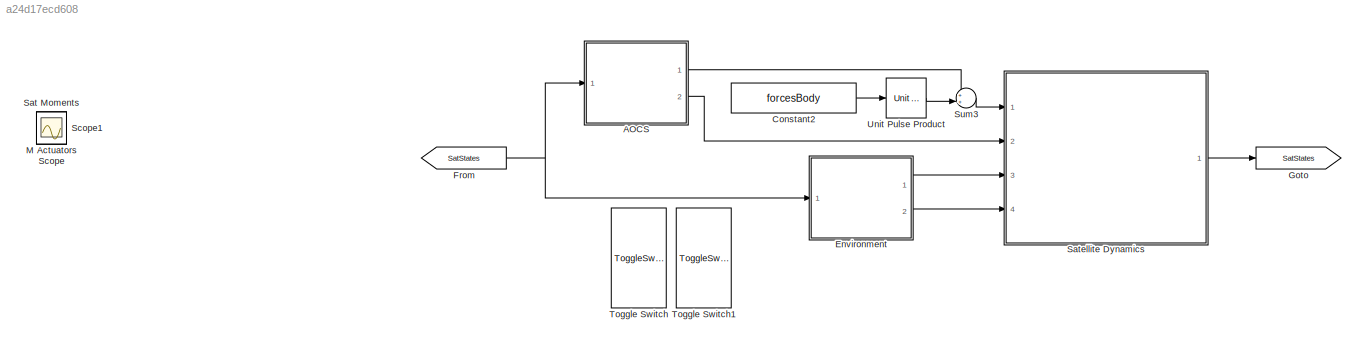
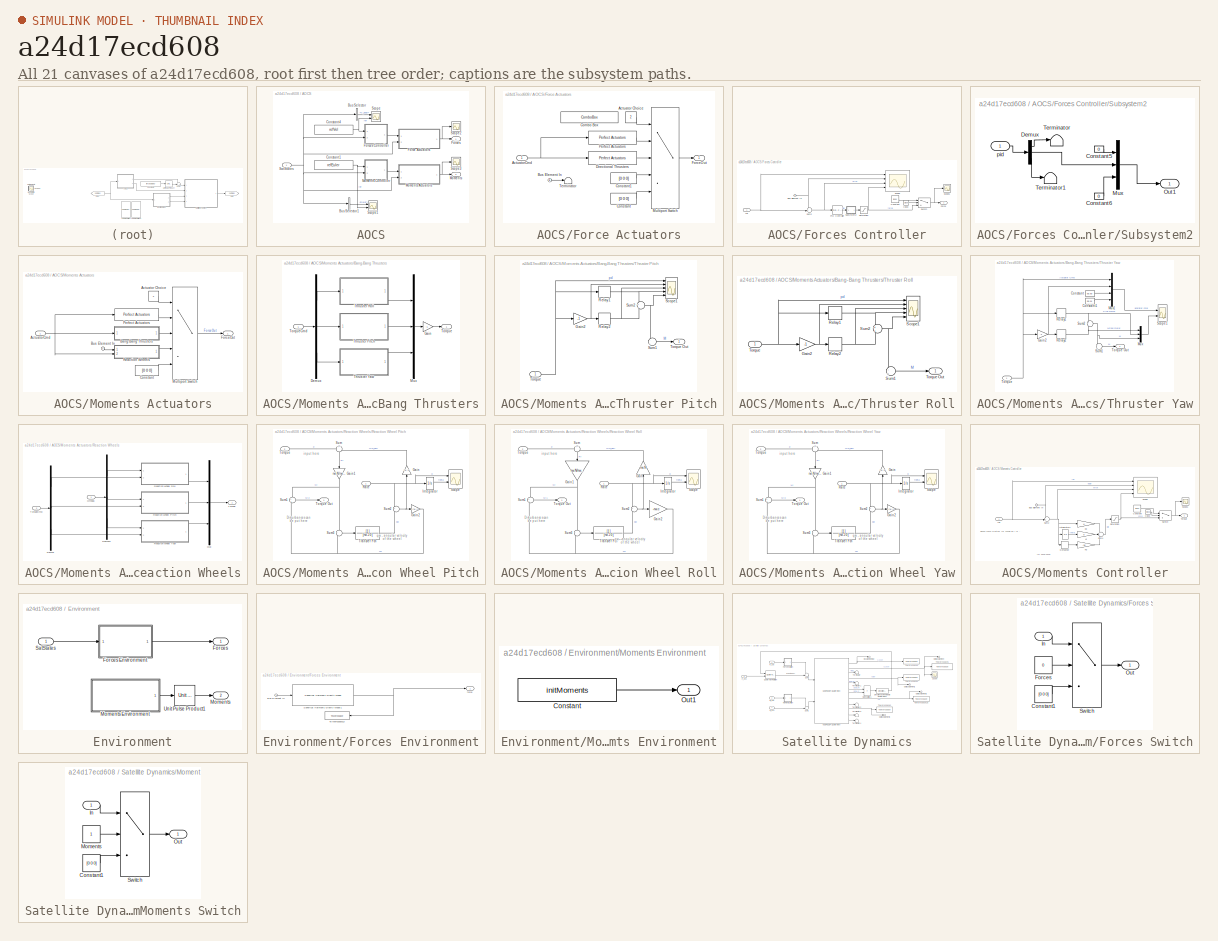
[diagram: thumbnail index - all 21 canvases of the model, root first then tree order]
MODEL slx_a24d17ecd608
KIND model
CONFIG AbsTol = auto
CONFIG EnableMultiTasking = off
CONFIG FixedStep = 0.01
CONFIG MaxStep = 1
CONFIG MinStep = dT
CONFIG RelTol = 1e-3
CONFIG SampleTimeConstraint = Unconstrained
CONFIG Solver = FixedStepAuto
CONFIG SolverName = FixedStepAuto
CONFIG StartTime = 0.0
CONFIG StopTime = 1000
WORKSPACE source: mxarray member
WORKSPACE actuators = 0
BLOCK [SubSystem] AOCS
  Ports = [1, 2]
  RequestExecContextInheritance = off
BLOCK [BusSelector] AOCS/Bus Selector
  OutputAsBus = off
  OutputSignals = V_body
  Ports = [1, 1]
BLOCK [BusSelector] AOCS/Bus Selector1
  OutputAsBus = off
  OutputSignals = Euler
  Ports = [1, 1]
BLOCK [Constant] AOCS/Constant1
  Value = refEuler
BLOCK [Constant] AOCS/Constant4
  Value = refVel
BLOCK [SubSystem] AOCS/Force Actuators
  Ports = [2, 1]
  RequestExecContextInheritance = off
BLOCK [Constant] AOCS/Force Actuators/Actuator Choice
  Value = 2
BLOCK [Inport] AOCS/Force Actuators/ActuatorCmd
  IconDisplay = Port number
BLOCK [Inport] AOCS/Force Actuators/Bus Element In
  IconDisplay = Port number
  Port = 2
BLOCK [ComboBox] AOCS/Force Actuators/Combo Box
  LabelPosition = Hide
  SelectedLabel = Thrusters
BLOCK [Constant] AOCS/Force Actuators/Constant
  Value = [0 0 0]
BLOCK [Constant] AOCS/Force Actuators/Constant1
  Value = [0 0 0]
BLOCK [Reference] AOCS/Force Actuators/Directional Thrusters  REF=scars_library/Perfect Actuators  (lib defined in slx_0992aaab4a30)
  Ports = [1, 1]
  SourceBlock = scars_library/Perfect Actuators
BLOCK [Outport] AOCS/Force Actuators/ForceOut
  IconDisplay = Port number
BLOCK [MultiPortSwitch] AOCS/Force Actuators/Multiport Switch
  DiagnosticForDefault = Warning
  InputSameDT = off
  Inputs = 4
  Ports = [5, 1]
  SaturateOnIntegerOverflow = off
BLOCK [Reference] AOCS/Force Actuators/Perfect Actuators  REF=scars_library/Perfect Actuators  (lib defined in slx_0992aaab4a30)
  Ports = [1, 1]
  SourceBlock = scars_library/Perfect Actuators
BLOCK [Terminator] AOCS/Force Actuators/Terminator
BLOCK [Outport] AOCS/Forces
  IconDisplay = Port number
BLOCK [SubSystem] AOCS/Forces Controller
  Ports = [2, 1]
  RequestExecContextInheritance = off
BLOCK [Inport] AOCS/Forces Controller/Bus Element In
  IconDisplay = Port number
  Port = 2
BLOCK [Clock] AOCS/Forces Controller/Clock
BLOCK [Constant] AOCS/Forces Controller/Constant
  Value = [0 0 0]
BLOCK [Outport] AOCS/Forces Controller/Force
  IconDisplay = Port number
BLOCK [Reference] AOCS/Forces Controller/PID Controller  REF=simulink/Continuous/PID Controller
  Ports = [1, 1]
  SourceBlock = simulink/Continuous/PID Controller
  SourceProductBaseCode = SL
  SourceProductName = Simulink
  SourceType = PID 1dof
BLOCK [Saturate] AOCS/Forces Controller/Saturation
  InputPortMap = u0
  LowerLimit = -3
  Ports = [1, 1]
  UpperLimit = 3
BLOCK [Scope] AOCS/Forces Controller/Scope
  Floating = off
  NumInputPorts = 4
  Ports = [4]
  ScopeSpecificationString = Simulink.scopes.TimeScopeBlockCfg('CurrentConfiguration', extmgr.ConfigurationSet(extmgr.Configuration('Core','General UI',true),extmgr.Configuration('Core','Source UI',true),extmgr.Configuration('Sources','WiredSimulink',true,'DataLoggingVariableName','ScopeData1'),extmgr.Configuration('Visuals','Time Domain',true,'SerializedDisplays',{struct('MinYLimReal','-872.23437','MaxYLimReal','7847.26756',...<+4383ch>
BLOCK [Scope] AOCS/Forces Controller/Scope1
  Floating = off
  NumInputPorts = 1
  Ports = [1]
  ScopeSpecificationString = Simulink.scopes.TimeScopeBlockCfg('CurrentConfiguration', extmgr.ConfigurationSet(extmgr.Configuration('Core','General UI',true),extmgr.Configuration('Core','Source UI',true),extmgr.Configuration('Sources','WiredSimulink',true,'DataLoggingVariableName','ScopeData1'),extmgr.Configuration('Visuals','Time Domain',true,'SerializedDisplays',{struct('MinYLimReal','-0.000024','MaxYLimReal','0.000003','YL...<+1426ch>
BLOCK [SubSystem] AOCS/Forces Controller/Subsystem2
  Commented = through
  Ports = [1, 1]
  RequestExecContextInheritance = off
BLOCK [Constant] AOCS/Forces Controller/Subsystem2/Constant5
  Value = 0
BLOCK [Constant] AOCS/Forces Controller/Subsystem2/Constant6
  Value = 0
BLOCK [Demux] AOCS/Forces Controller/Subsystem2/Demux
  DisplayOption = bar
  Outputs = 3
  Ports = [1, 3]
BLOCK [Mux] AOCS/Forces Controller/Subsystem2/Mux
  DisplayOption = bar
  Inputs = 3
  Ports = [3, 1]
BLOCK [Outport] AOCS/Forces Controller/Subsystem2/Out1
  IconDisplay = Port number
BLOCK [Terminator] AOCS/Forces Controller/Subsystem2/Terminator
BLOCK [Terminator] AOCS/Forces Controller/Subsystem2/Terminator1
BLOCK [Inport] AOCS/Forces Controller/Subsystem2/pid
  IconDisplay = Port number
BLOCK [Sum] AOCS/Forces Controller/Sum2
  IconShape = round
  InputSameDT = off
  Inputs = -+|
  OutDataTypeStr = Inherit: Inherit via internal rule
  Ports = [2, 1]
  SaturateOnIntegerOverflow = off
BLOCK [Switch] AOCS/Forces Controller/Switch
  InputSameDT = off
  SaturateOnIntegerOverflow = off
  Threshold = 5000
BLOCK [Inport] AOCS/Forces Controller/ref
  IconDisplay = Port number
BLOCK [Outport] AOCS/Moments
  IconDisplay = Port number
  Port = 2
BLOCK [SubSystem] AOCS/Moments Actuators
  Ports = [2, 1]
  RequestExecContextInheritance = off
BLOCK [Constant] AOCS/Moments Actuators/Actuator Choice
  Value = 2
BLOCK [Inport] AOCS/Moments Actuators/ActuatorCmd
  IconDisplay = Port number
BLOCK [SubSystem] AOCS/Moments Actuators/Bang-Bang Thrusters
  Ports = [1, 1]
  RequestExecContextInheritance = off
BLOCK [Demux] AOCS/Moments Actuators/Bang-Bang Thrusters/Demux
  DisplayOption = bar
  Outputs = 3
  Ports = [1, 3]
BLOCK [Gain] AOCS/Moments Actuators/Bang-Bang Thrusters/Gain
  Gain = -1
  OutDataTypeStr = Inherit: Inherit via internal rule
  ParamDataTypeStr = Inherit: Inherit via internal rule
  SaturateOnIntegerOverflow = off
BLOCK [Mux] AOCS/Moments Actuators/Bang-Bang Thrusters/Mux
  DisplayOption = bar
  Inputs = 3
  Ports = [3, 1]
BLOCK [SubSystem] AOCS/Moments Actuators/Bang-Bang Thrusters/Thruster Pitch
  Ports = [1, 1]
  RequestExecContextInheritance = off
BLOCK [Gain] AOCS/Moments Actuators/Bang-Bang Thrusters/Thruster Pitch/Gain2
  Gain = -1
  OutDataTypeStr = Inherit: Inherit via internal rule
  ParamDataTypeStr = Inherit: Inherit via internal rule
  SaturateOnIntegerOverflow = off
BLOCK [Relay] AOCS/Moments Actuators/Bang-Bang Thrusters/Thruster Pitch/Relay1
  OffSwitchValue = bb.a0
  OnOutputValue = bb.thrust
  OnSwitchValue = bb.a1
BLOCK [Relay] AOCS/Moments Actuators/Bang-Bang Thrusters/Thruster Pitch/Relay2
  OffSwitchValue = bb.a0
  OnOutputValue = -bb.thrust
  OnSwitchValue = bb.a1
BLOCK [Scope] AOCS/Moments Actuators/Bang-Bang Thrusters/Thruster Pitch/Scope1
  Floating = off
  NumInputPorts = 5
  Ports = [5]
  ScopeSpecificationString = Simulink.scopes.TimeScopeBlockCfg('CurrentConfiguration', extmgr.ConfigurationSet(extmgr.Configuration('Core','General UI',true),extmgr.Configuration('Core','Source UI',true),extmgr.Configuration('Sources','WiredSimulink',true,'DataLoggingVariableName','ScopeData2'),extmgr.Configuration('Visuals','Time Domain',true,'SerializedDisplays',{struct('MinYLimReal','-5012.5','MaxYLimReal','5012.5','YLabel...<+1494ch>
BLOCK [Sum] AOCS/Moments Actuators/Bang-Bang Thrusters/Thruster Pitch/Sum1
  IconShape = round
  InputSameDT = off
  Inputs = -|-
  OutDataTypeStr = Inherit: Inherit via internal rule
  Ports = [2, 1]
  SaturateOnIntegerOverflow = off
BLOCK [Sum] AOCS/Moments Actuators/Bang-Bang Thrusters/Thruster Pitch/Sum2
  IconShape = round
  InputSameDT = off
  Inputs = +|+
  OutDataTypeStr = Inherit: Inherit via internal rule
  Ports = [2, 1]
  SaturateOnIntegerOverflow = off
BLOCK [Inport] AOCS/Moments Actuators/Bang-Bang Thrusters/Thruster Pitch/Torque
  IconDisplay = Port number
BLOCK [Outport] AOCS/Moments Actuators/Bang-Bang Thrusters/Thruster Pitch/Torque Out
  IconDisplay = Port number
BLOCK [SubSystem] AOCS/Moments Actuators/Bang-Bang Thrusters/Thruster Roll
  Ports = [1, 1]
  RequestExecContextInheritance = off
BLOCK [Gain] AOCS/Moments Actuators/Bang-Bang Thrusters/Thruster Roll/Gain2
  Gain = -1
  OutDataTypeStr = Inherit: Inherit via internal rule
  ParamDataTypeStr = Inherit: Inherit via internal rule
  SaturateOnIntegerOverflow = off
BLOCK [Relay] AOCS/Moments Actuators/Bang-Bang Thrusters/Thruster Roll/Relay1
  OffSwitchValue = bb.a0
  OnOutputValue = bb.thrust
  OnSwitchValue = bb.a1
BLOCK [Relay] AOCS/Moments Actuators/Bang-Bang Thrusters/Thruster Roll/Relay2
  OffSwitchValue = bb.a0
  OnOutputValue = -bb.thrust
  OnSwitchValue = bb.a1
BLOCK [Scope] AOCS/Moments Actuators/Bang-Bang Thrusters/Thruster Roll/Scope1
  Floating = off
  NumInputPorts = 5
  Ports = [5]
  ScopeSpecificationString = Simulink.scopes.TimeScopeBlockCfg('CurrentConfiguration', extmgr.ConfigurationSet(extmgr.Configuration('Core','General UI',true),extmgr.Configuration('Core','Source UI',true),extmgr.Configuration('Sources','WiredSimulink',true,'DataLoggingVariableName','ScopeData2'),extmgr.Configuration('Visuals','Time Domain',true,'SerializedDisplays',{struct('MinYLimReal','-0.07852','MaxYLimReal','0.07852','YLab...<+1540ch>
BLOCK [Sum] AOCS/Moments Actuators/Bang-Bang Thrusters/Thruster Roll/Sum1
  IconShape = round
  InputSameDT = off
  Inputs = -|-
  OutDataTypeStr = Inherit: Inherit via internal rule
  Ports = [2, 1]
  SaturateOnIntegerOverflow = off
BLOCK [Sum] AOCS/Moments Actuators/Bang-Bang Thrusters/Thruster Roll/Sum2
  IconShape = round
  InputSameDT = off
  Inputs = +|+
  OutDataTypeStr = Inherit: Inherit via internal rule
  Ports = [2, 1]
  SaturateOnIntegerOverflow = off
BLOCK [Inport] AOCS/Moments Actuators/Bang-Bang Thrusters/Thruster Roll/Torque
  IconDisplay = Port number
BLOCK [Outport] AOCS/Moments Actuators/Bang-Bang Thrusters/Thruster Roll/Torque Out
  IconDisplay = Port number
BLOCK [SubSystem] AOCS/Moments Actuators/Bang-Bang Thrusters/Thruster Yaw
  Ports = [1, 1]
  RequestExecContextInheritance = off
BLOCK [Constant] AOCS/Moments Actuators/Bang-Bang Thrusters/Thruster Yaw/Constant
  Value = bb.a0
BLOCK [Constant] AOCS/Moments Actuators/Bang-Bang Thrusters/Thruster Yaw/Constant1
  Value = bb.a1
BLOCK [Gain] AOCS/Moments Actuators/Bang-Bang Thrusters/Thruster Yaw/Gain2
  Gain = -1
  OutDataTypeStr = Inherit: Inherit via internal rule
  ParamDataTypeStr = Inherit: Inherit via internal rule
  SaturateOnIntegerOverflow = off
BLOCK [Mux] AOCS/Moments Actuators/Bang-Bang Thrusters/Thruster Yaw/Mux
  DisplayOption = bar
  Inputs = 3
  Ports = [3, 1]
BLOCK [Mux] AOCS/Moments Actuators/Bang-Bang Thrusters/Thruster Yaw/Mux1
  DisplayOption = bar
  Ports = [4, 1]
BLOCK [Relay] AOCS/Moments Actuators/Bang-Bang Thrusters/Thruster Yaw/Relay1
  OffSwitchValue = bb.a0
  OnOutputValue = bb.thrust
  OnSwitchValue = bb.a1
BLOCK [Relay] AOCS/Moments Actuators/Bang-Bang Thrusters/Thruster Yaw/Relay2
  OffSwitchValue = bb.a0
  OnOutputValue = -bb.thrust
  OnSwitchValue = bb.a1
BLOCK [Scope] AOCS/Moments Actuators/Bang-Bang Thrusters/Thruster Yaw/Scope1
  Floating = off
  NumInputPorts = 2
  Ports = [2]
  ScopeSpecificationString = Simulink.scopes.TimeScopeBlockCfg('CurrentConfiguration', extmgr.ConfigurationSet(extmgr.Configuration('Core','General UI',true),extmgr.Configuration('Core','Source UI',true),extmgr.Configuration('Sources','WiredSimulink',true,'DataLoggingVariableName','ScopeData2'),extmgr.Configuration('Visuals','Time Domain',true,'SerializedDisplays',{struct('MinYLimReal','-1.21674','MaxYLimReal','1.21674','YLab...<+2355ch>
BLOCK [Sum] AOCS/Moments Actuators/Bang-Bang Thrusters/Thruster Yaw/Sum1
  IconShape = round
  InputSameDT = off
  Inputs = -|-
  OutDataTypeStr = Inherit: Inherit via internal rule
  Ports = [2, 1]
  SaturateOnIntegerOverflow = off
BLOCK [Sum] AOCS/Moments Actuators/Bang-Bang Thrusters/Thruster Yaw/Sum2
  IconShape = round
  InputSameDT = off
  Inputs = +|+
  OutDataTypeStr = Inherit: Inherit via internal rule
  Ports = [2, 1]
  SaturateOnIntegerOverflow = off
BLOCK [Inport] AOCS/Moments Actuators/Bang-Bang Thrusters/Thruster Yaw/Torque
  IconDisplay = Port number
BLOCK [Outport] AOCS/Moments Actuators/Bang-Bang Thrusters/Thruster Yaw/Torque Out
  IconDisplay = Port number
BLOCK [Outport] AOCS/Moments Actuators/Bang-Bang Thrusters/Torque
  IconDisplay = Port number
  VectorParamsAs1DForOutWhenUnconnected = off
BLOCK [Inport] AOCS/Moments Actuators/Bang-Bang Thrusters/TorqueCmd
  IconDisplay = Port number
BLOCK [Inport] AOCS/Moments Actuators/Bus Element In
  IconDisplay = Port number
  Port = 2
BLOCK [Constant] AOCS/Moments Actuators/Constant
  Value = [0 0 0]
BLOCK [Outport] AOCS/Moments Actuators/ForceOut
  IconDisplay = Port number
BLOCK [MultiPortSwitch] AOCS/Moments Actuators/Multiport Switch
  DiagnosticForDefault = Warning
  InputSameDT = off
  Inputs = 4
  Ports = [5, 1]
  SaturateOnIntegerOverflow = off
BLOCK [Reference] AOCS/Moments Actuators/Perfect Actuators  REF=scars_library/Perfect Actuators  (lib defined in slx_0992aaab4a30)
  Ports = [1, 1]
  SourceBlock = scars_library/Perfect Actuators
BLOCK [SubSystem] AOCS/Moments Actuators/Reaction Wheels
  Ports = [2, 1]
  RequestExecContextInheritance = off
BLOCK [Demux] AOCS/Moments Actuators/Reaction Wheels/Demux
  DisplayOption = bar
  Outputs = 3
  Ports = [1, 3]
BLOCK [Demux] AOCS/Moments Actuators/Reaction Wheels/Demux2
  DisplayOption = bar
  Outputs = 3
  Ports = [1, 3]
BLOCK [Mux] AOCS/Moments Actuators/Reaction Wheels/Mux
  DisplayOption = bar
  Inputs = 3
  Ports = [3, 1]
BLOCK [Inport] AOCS/Moments Actuators/Reaction Wheels/Omega
  IconDisplay = Port number
BLOCK [SubSystem] AOCS/Moments Actuators/Reaction Wheels/Reaction Wheel Pitch
  Ports = [2, 1]
  RequestExecContextInheritance = off
BLOCK [Gain] AOCS/Moments Actuators/Reaction Wheels/Reaction Wheel Pitch/Gain
  Gain = rw.N
  OutDataTypeStr = Inherit: Inherit via internal rule
  ParamDataTypeStr = Inherit: Inherit via internal rule
  SaturateOnIntegerOverflow = off
BLOCK [Gain] AOCS/Moments Actuators/Reaction Wheels/Reaction Wheel Pitch/Gain1
  Gain = rw.N/rw.R
  OutDataTypeStr = Inherit: Inherit via internal rule
  ParamDataTypeStr = Inherit: Inherit via internal rule
  SaturateOnIntegerOverflow = off
BLOCK [Gain] AOCS/Moments Actuators/Reaction Wheels/Reaction Wheel Pitch/Gain2
  Gain = -rw.c
  OutDataTypeStr = Inherit: Inherit via internal rule
  ParamDataTypeStr = Inherit: Inherit via internal rule
  SaturateOnIntegerOverflow = off
BLOCK [Integrator] AOCS/Moments Actuators/Reaction Wheels/Reaction Wheel Pitch/Integrator
  Ports = [1, 1]
BLOCK [Inport] AOCS/Moments Actuators/Reaction Wheels/Reaction Wheel Pitch/Rate
  IconDisplay = Port number
BLOCK [Scope] AOCS/Moments Actuators/Reaction Wheels/Reaction Wheel Pitch/Scope
  Floating = off
  NumInputPorts = 2
  Ports = [2]
  ScopeSpecificationString = Simulink.scopes.TimeScopeBlockCfg('CurrentConfiguration', extmgr.ConfigurationSet(extmgr.Configuration('Core','General UI',true),extmgr.Configuration('Core','Source UI',true),extmgr.Configuration('Sources','WiredSimulink',true,'DataLoggingVariableName','ScopeData2'),extmgr.Configuration('Visuals','Time Domain',true,'SerializedDisplays',{struct('MinYLimReal','-0.04089','MaxYLimReal','0.04884','YLab...<+2028ch>
BLOCK [Sum] AOCS/Moments Actuators/Reaction Wheels/Reaction Wheel Pitch/Sum
  IconShape = round
  InputSameDT = off
  Inputs = +|-
  OutDataTypeStr = Inherit: Inherit via internal rule
  Ports = [2, 1]
  SaturateOnIntegerOverflow = off
BLOCK [Sum] AOCS/Moments Actuators/Reaction Wheels/Reaction Wheel Pitch/Sum1
  IconShape = round
  InputSameDT = off
  Inputs = +|+
  OutDataTypeStr = Inherit: Inherit via internal rule
  Ports = [2, 1]
  SaturateOnIntegerOverflow = off
BLOCK [Sum] AOCS/Moments Actuators/Reaction Wheels/Reaction Wheel Pitch/Sum2
  IconShape = round
  InputSameDT = off
  Inputs = +|-
  OutDataTypeStr = Inherit: Inherit via internal rule
  Ports = [2, 1]
  SaturateOnIntegerOverflow = off
BLOCK [Sum] AOCS/Moments Actuators/Reaction Wheels/Reaction Wheel Pitch/Sum3
  IconShape = round
  InputSameDT = off
  Inputs = -|-
  OutDataTypeStr = Inherit: Inherit via internal rule
  Ports = [2, 1]
  SaturateOnIntegerOverflow = off
BLOCK [Inport] AOCS/Moments Actuators/Reaction Wheels/Reaction Wheel Pitch/Torque
  IconDisplay = Port number
  Port = 2
BLOCK [Outport] AOCS/Moments Actuators/Reaction Wheels/Reaction Wheel Pitch/Torque Out
  IconDisplay = Port number
BLOCK [TransferFcn] AOCS/Moments Actuators/Reaction Wheels/Reaction Wheel Pitch/Transfer Fcn
  Denominator = [rw.J 0]
BLOCK [SubSystem] AOCS/Moments Actuators/Reaction Wheels/Reaction Wheel Roll
  Ports = [2, 1]
  RequestExecContextInheritance = off
BLOCK [Gain] AOCS/Moments Actuators/Reaction Wheels/Reaction Wheel Roll/Gain
  Gain = rw.N
  OutDataTypeStr = Inherit: Inherit via internal rule
  ParamDataTypeStr = Inherit: Inherit via internal rule
  SaturateOnIntegerOverflow = off
BLOCK [Gain] AOCS/Moments Actuators/Reaction Wheels/Reaction Wheel Roll/Gain1
  Gain = rw.N/rw.R
  OutDataTypeStr = Inherit: Inherit via internal rule
  ParamDataTypeStr = Inherit: Inherit via internal rule
  SaturateOnIntegerOverflow = off
BLOCK [Gain] AOCS/Moments Actuators/Reaction Wheels/Reaction Wheel Roll/Gain2
  Gain = -rw.c
  OutDataTypeStr = Inherit: Inherit via internal rule
  ParamDataTypeStr = Inherit: Inherit via internal rule
  SaturateOnIntegerOverflow = off
BLOCK [Integrator] AOCS/Moments Actuators/Reaction Wheels/Reaction Wheel Roll/Integrator
  Ports = [1, 1]
BLOCK [Inport] AOCS/Moments Actuators/Reaction Wheels/Reaction Wheel Roll/Rate
  IconDisplay = Port number
BLOCK [Scope] AOCS/Moments Actuators/Reaction Wheels/Reaction Wheel Roll/Scope
  Floating = off
  NumInputPorts = 2
  Ports = [2]
  ScopeSpecificationString = Simulink.scopes.TimeScopeBlockCfg('CurrentConfiguration', extmgr.ConfigurationSet(extmgr.Configuration('Core','General UI',true),extmgr.Configuration('Core','Source UI',true),extmgr.Configuration('Sources','WiredSimulink',true,'DataLoggingVariableName','ScopeData1'),extmgr.Configuration('Visuals','Time Domain',true,'SerializedDisplays',{struct('MinYLimReal','-0.04089','MaxYLimReal','0.04884','YLab...<+2028ch>
BLOCK [Sum] AOCS/Moments Actuators/Reaction Wheels/Reaction Wheel Roll/Sum
  IconShape = round
  InputSameDT = off
  Inputs = +|-
  OutDataTypeStr = Inherit: Inherit via internal rule
  Ports = [2, 1]
  SaturateOnIntegerOverflow = off
BLOCK [Sum] AOCS/Moments Actuators/Reaction Wheels/Reaction Wheel Roll/Sum1
  IconShape = round
  InputSameDT = off
  Inputs = +|+
  OutDataTypeStr = Inherit: Inherit via internal rule
  Ports = [2, 1]
  SaturateOnIntegerOverflow = off
BLOCK [Sum] AOCS/Moments Actuators/Reaction Wheels/Reaction Wheel Roll/Sum2
  IconShape = round
  InputSameDT = off
  Inputs = +|-
  OutDataTypeStr = Inherit: Inherit via internal rule
  Ports = [2, 1]
  SaturateOnIntegerOverflow = off
BLOCK [Sum] AOCS/Moments Actuators/Reaction Wheels/Reaction Wheel Roll/Sum3
  IconShape = round
  InputSameDT = off
  Inputs = -|-
  OutDataTypeStr = Inherit: Inherit via internal rule
  Ports = [2, 1]
  SaturateOnIntegerOverflow = off
BLOCK [Inport] AOCS/Moments Actuators/Reaction Wheels/Reaction Wheel Roll/Torque
  IconDisplay = Port number
  Port = 2
BLOCK [Outport] AOCS/Moments Actuators/Reaction Wheels/Reaction Wheel Roll/Torque Out
  IconDisplay = Port number
BLOCK [TransferFcn] AOCS/Moments Actuators/Reaction Wheels/Reaction Wheel Roll/Transfer Fcn
  Denominator = [rw.J 0]
BLOCK [SubSystem] AOCS/Moments Actuators/Reaction Wheels/Reaction Wheel Yaw
  Ports = [2, 1]
  RequestExecContextInheritance = off
BLOCK [Gain] AOCS/Moments Actuators/Reaction Wheels/Reaction Wheel Yaw/Gain
  Gain = rw.N
  OutDataTypeStr = Inherit: Inherit via internal rule
  ParamDataTypeStr = Inherit: Inherit via internal rule
  SaturateOnIntegerOverflow = off
BLOCK [Gain] AOCS/Moments Actuators/Reaction Wheels/Reaction Wheel Yaw/Gain1
  Gain = rw.N/rw.R
  OutDataTypeStr = Inherit: Inherit via internal rule
  ParamDataTypeStr = Inherit: Inherit via internal rule
  SaturateOnIntegerOverflow = off
BLOCK [Gain] AOCS/Moments Actuators/Reaction Wheels/Reaction Wheel Yaw/Gain2
  Gain = -rw.c
  OutDataTypeStr = Inherit: Inherit via internal rule
  ParamDataTypeStr = Inherit: Inherit via internal rule
  SaturateOnIntegerOverflow = off
BLOCK [Integrator] AOCS/Moments Actuators/Reaction Wheels/Reaction Wheel Yaw/Integrator
  Ports = [1, 1]
BLOCK [Inport] AOCS/Moments Actuators/Reaction Wheels/Reaction Wheel Yaw/Rate
  IconDisplay = Port number
BLOCK [Scope] AOCS/Moments Actuators/Reaction Wheels/Reaction Wheel Yaw/Scope
  Floating = off
  NumInputPorts = 2
  Ports = [2]
  ScopeSpecificationString = Simulink.scopes.TimeScopeBlockCfg('CurrentConfiguration', extmgr.ConfigurationSet(extmgr.Configuration('Core','General UI',true),extmgr.Configuration('Core','Source UI',true),extmgr.Configuration('Sources','WiredSimulink',true,'DataLoggingVariableName','ScopeData3'),extmgr.Configuration('Visuals','Time Domain',true,'SerializedDisplays',{struct('MinYLimReal','-0.04089','MaxYLimReal','0.04884','YLab...<+2028ch>
BLOCK [Sum] AOCS/Moments Actuators/Reaction Wheels/Reaction Wheel Yaw/Sum
  IconShape = round
  InputSameDT = off
  Inputs = +|-
  OutDataTypeStr = Inherit: Inherit via internal rule
  Ports = [2, 1]
  SaturateOnIntegerOverflow = off
BLOCK [Sum] AOCS/Moments Actuators/Reaction Wheels/Reaction Wheel Yaw/Sum1
  IconShape = round
  InputSameDT = off
  Inputs = +|+
  OutDataTypeStr = Inherit: Inherit via internal rule
  Ports = [2, 1]
  SaturateOnIntegerOverflow = off
BLOCK [Sum] AOCS/Moments Actuators/Reaction Wheels/Reaction Wheel Yaw/Sum2
  IconShape = round
  InputSameDT = off
  Inputs = +|-
  OutDataTypeStr = Inherit: Inherit via internal rule
  Ports = [2, 1]
  SaturateOnIntegerOverflow = off
BLOCK [Sum] AOCS/Moments Actuators/Reaction Wheels/Reaction Wheel Yaw/Sum3
  IconShape = round
  InputSameDT = off
  Inputs = -|-
  OutDataTypeStr = Inherit: Inherit via internal rule
  Ports = [2, 1]
  SaturateOnIntegerOverflow = off
BLOCK [Inport] AOCS/Moments Actuators/Reaction Wheels/Reaction Wheel Yaw/Torque
  IconDisplay = Port number
  Port = 2
BLOCK [Outport] AOCS/Moments Actuators/Reaction Wheels/Reaction Wheel Yaw/Torque Out
  IconDisplay = Port number
BLOCK [TransferFcn] AOCS/Moments Actuators/Reaction Wheels/Reaction Wheel Yaw/Transfer Fcn
  Denominator = [rw.J 0]
BLOCK [Outport] AOCS/Moments Actuators/Reaction Wheels/Torque
  IconDisplay = Port number
  VectorParamsAs1DForOutWhenUnconnected = off
BLOCK [Inport] AOCS/Moments Actuators/Reaction Wheels/TorqueCmd
  IconDisplay = Port number
  Port = 2
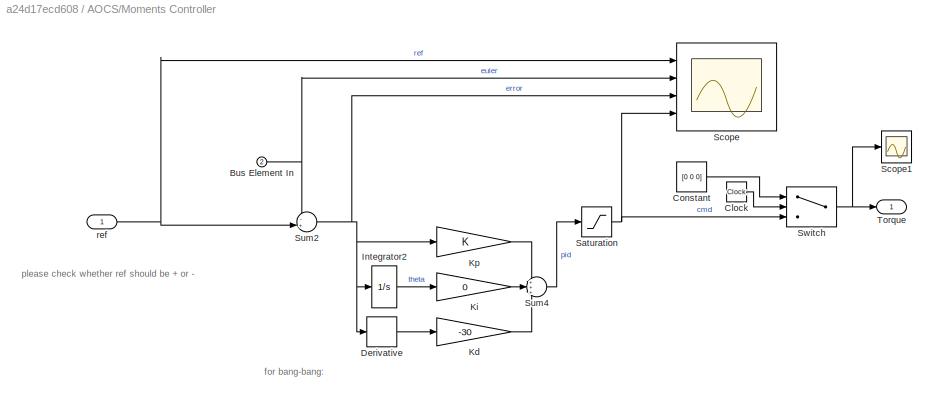
BLOCK [SubSystem] AOCS/Moments Controller
  Ports = [2, 1]
  RequestExecContextInheritance = off
BLOCK [Inport] AOCS/Moments Controller/Bus Element In
  IconDisplay = Port number
  Port = 2
BLOCK [Clock] AOCS/Moments Controller/Clock
BLOCK [Constant] AOCS/Moments Controller/Constant
  Value = [0 0 0]
BLOCK [Derivative] AOCS/Moments Controller/Derivative
BLOCK [Integrator] AOCS/Moments Controller/Integrator2
  Ports = [1, 1]
BLOCK [Gain] AOCS/Moments Controller/Kd
  Gain = -30
  OutDataTypeStr = Inherit: Inherit via internal rule
  ParamDataTypeStr = Inherit: Inherit via internal rule
  SaturateOnIntegerOverflow = off
BLOCK [Gain] AOCS/Moments Controller/Ki
  Gain = 0
  OutDataTypeStr = Inherit: Inherit via internal rule
  ParamDataTypeStr = Inherit: Inherit via internal rule
  SaturateOnIntegerOverflow = off
BLOCK [Gain] AOCS/Moments Controller/Kp
  OutDataTypeStr = Inherit: Inherit via internal rule
  ParamDataTypeStr = Inherit: Inherit via internal rule
  SaturateOnIntegerOverflow = off
BLOCK [Saturate] AOCS/Moments Controller/Saturation
  InputPortMap = u0
  LowerLimit = -3
  Ports = [1, 1]
  UpperLimit = 3
BLOCK [Scope] AOCS/Moments Controller/Scope
  Floating = off
  NumInputPorts = 4
  Ports = [4]
  ScopeSpecificationString = Simulink.scopes.TimeScopeBlockCfg('CurrentConfiguration', extmgr.ConfigurationSet(extmgr.Configuration('Core','General UI',true),extmgr.Configuration('Core','Source UI',true),extmgr.Configuration('Sources','WiredSimulink',true,'DataLoggingVariableName','ScopeData1'),extmgr.Configuration('Visuals','Time Domain',true,'SerializedDisplays',{struct('MinYLimReal','-0.06545','MaxYLimReal','0.58905','YLab...<+4627ch>
BLOCK [Scope] AOCS/Moments Controller/Scope1
  Floating = off
  NumInputPorts = 1
  Ports = [1]
  ScopeSpecificationString = Simulink.scopes.TimeScopeBlockCfg('CurrentConfiguration', extmgr.ConfigurationSet(extmgr.Configuration('Core','General UI',true),extmgr.Configuration('Core','Source UI',true),extmgr.Configuration('Sources','WiredSimulink',true,'DataLoggingVariableName','ScopeData1'),extmgr.Configuration('Visuals','Time Domain',true,'SerializedDisplays',{struct('MinYLimReal','-0.00022','MaxYLimReal','0.00197','YLab...<+1418ch>
BLOCK [Sum] AOCS/Moments Controller/Sum2
  IconShape = round
  InputSameDT = off
  Inputs = -+|
  OutDataTypeStr = Inherit: Inherit via internal rule
  Ports = [2, 1]
  SaturateOnIntegerOverflow = off
BLOCK [Sum] AOCS/Moments Controller/Sum4
  IconShape = round
  InputSameDT = off
  Inputs = +++
  OutDataTypeStr = Inherit: Inherit via internal rule
  Ports = [3, 1]
  SaturateOnIntegerOverflow = off
BLOCK [Switch] AOCS/Moments Controller/Switch
  InputSameDT = off
  SaturateOnIntegerOverflow = off
  Threshold = 5000
BLOCK [Outport] AOCS/Moments Controller/Torque
  IconDisplay = Port number
BLOCK [Inport] AOCS/Moments Controller/ref
  IconDisplay = Port number
BLOCK [Inport] AOCS/SatStates
  IconDisplay = Port number
BLOCK [Scope] AOCS/Scope
  Floating = off
  NumInputPorts = 2
  Ports = [2]
  ScopeSpecificationString = Simulink.scopes.TimeScopeBlockCfg('CurrentConfiguration', extmgr.ConfigurationSet(extmgr.Configuration('Core','General UI',true),extmgr.Configuration('Core','Source UI',true),extmgr.Configuration('Sources','WiredSimulink',true,'DataLoggingVariableName','ScopeData1'),extmgr.Configuration('Visuals','Time Domain',true,'SerializedDisplays',{struct('MinYLimReal','-809.73694','MaxYLimReal','7284.79065',...<+2120ch>
BLOCK [Scope] AOCS/Scope1
  Floating = off
  NumInputPorts = 2
  Ports = [2]
  ScopeSpecificationString = Simulink.scopes.TimeScopeBlockCfg('CurrentConfiguration', extmgr.ConfigurationSet(extmgr.Configuration('Core','General UI',true),extmgr.Configuration('Core','Source UI',true),extmgr.Configuration('Sources','WiredSimulink',true,'DataLoggingVariableName','ScopeData2'),extmgr.Configuration('Visuals','Time Domain',true,'SerializedDisplays',{struct('MinYLimReal','-0.12359','MaxYLimReal','0.32482','YLab...<+2223ch>
BLOCK [Scope] AOCS/Scope2
  Floating = off
  NumInputPorts = 1
  Ports = [1]
  ScopeSpecificationString = Simulink.scopes.TimeScopeBlockCfg('CurrentConfiguration', extmgr.ConfigurationSet(extmgr.Configuration('Core','General UI',true),extmgr.Configuration('Core','Source UI',true),extmgr.Configuration('Sources','WiredSimulink',true,'DataLoggingVariableName','ScopeData3'),extmgr.Configuration('Visuals','Time Domain',true),extmgr.Configuration('Tools','Plot Navigation',true),extmgr.Configuration('Tools',...<+40ch>
BLOCK [Scope] AOCS/Scope3
  Floating = off
  NumInputPorts = 1
  Ports = [1]
  ScopeSpecificationString = Simulink.scopes.TimeScopeBlockCfg('CurrentConfiguration', extmgr.ConfigurationSet(extmgr.Configuration('Core','General UI',true),extmgr.Configuration('Core','Source UI',true),extmgr.Configuration('Sources','WiredSimulink',true,'DataLoggingVariableName','ScopeData4'),extmgr.Configuration('Visuals','Time Domain',true,'SerializedDisplays',{struct('MinYLimReal','-0.00022','MaxYLimReal','0.00197','YLab...<+1451ch>
BLOCK [Constant] Constant2
  Value = forcesBody
BLOCK [SubSystem] Environment
  Ports = [1, 2]
  RequestExecContextInheritance = off
BLOCK [Outport] Environment/Forces
  IconDisplay = Port number
BLOCK [SubSystem] Environment/Forces Environment
  Ports = [1, 1]
  RequestExecContextInheritance = off
BLOCK [Inport] Environment/Forces Environment/Bus Element In
  IconDisplay = Port number
BLOCK [Reference] Environment/Forces Environment/Spherical Harmonic Gravity Model1  REF=aerolibgravity2/Spherical Harmonic Gravity Model
  Ports = [1, 1]
  SourceBlock = aerolibgravity2/Spherical Harmonic Gravity Model
  SourceProductBaseCode = AE
  SourceProductName = Aerospace Blockset
  SourceType = Spherical Harmonic Gravity Model
BLOCK [ToWorkspace] Environment/Forces Environment/To Workspace13
  FixptAsFi = on
  MaxDataPoints = inf
  Ports = [1]
  SampleTime = -1
  VariableName = g
BLOCK [Outport] Environment/Forces Environment/force
  IconDisplay = Port number
BLOCK [Outport] Environment/Moments
  IconDisplay = Port number
  Port = 2
BLOCK [SubSystem] Environment/Moments Environment
  Ports = [0, 1]
  RequestExecContextInheritance = off
BLOCK [Constant] Environment/Moments Environment/Constant
  Value = initMoments
BLOCK [Outport] Environment/Moments Environment/Out1
  IconDisplay = Port number
BLOCK [Inport] Environment/SatStates
  IconDisplay = Port number
BLOCK [Reference] Environment/Unit Pulse Product1  REF=scars_library/Unit Pulse Product  (lib defined in slx_0992aaab4a30)
  Ports = [1, 1]
  SourceBlock = scars_library/Unit Pulse Product
BLOCK [From] From
  GotoTag = SatStates
BLOCK [Goto] Goto
  GotoTag = SatStates
BLOCK [Scope] M Actuators
  Floating = off
  IOType = viewer
  NumInputPorts = 1
  Ports = []
  ScopeSpecificationString = Simulink.scopes.TimeScopeBlockCfg('CurrentConfiguration', extmgr.ConfigurationSet(extmgr.Configuration('Core','General UI',true),extmgr.Configuration('Core','Source UI',true),extmgr.Configuration('Sources','WiredSimulink',true,'DataLoggingVariableName','ScopeData1'),extmgr.Configuration('Visuals','Time Domain',true,'SerializedDisplays',{struct('MinYLimReal','-3.75','MaxYLimReal','3.75','YLabelReal...<+5066ch>
BLOCK [Scope] Sat Moments
  Floating = off
  IOType = viewer
  NumInputPorts = 1
  Ports = []
  ScopeSpecificationString = Simulink.scopes.TimeScopeBlockCfg('CurrentConfiguration', extmgr.ConfigurationSet(extmgr.Configuration('Core','General UI',true),extmgr.Configuration('Core','Source UI',true),extmgr.Configuration('Sources','WiredSimulink',true,'DataLoggingVariableName','ScopeData1'),extmgr.Configuration('Visuals','Time Domain',true,'SerializedDisplays',{struct('MinYLimReal','-1.00000','MaxYLimReal','1.00000','YLab...<+2752ch>
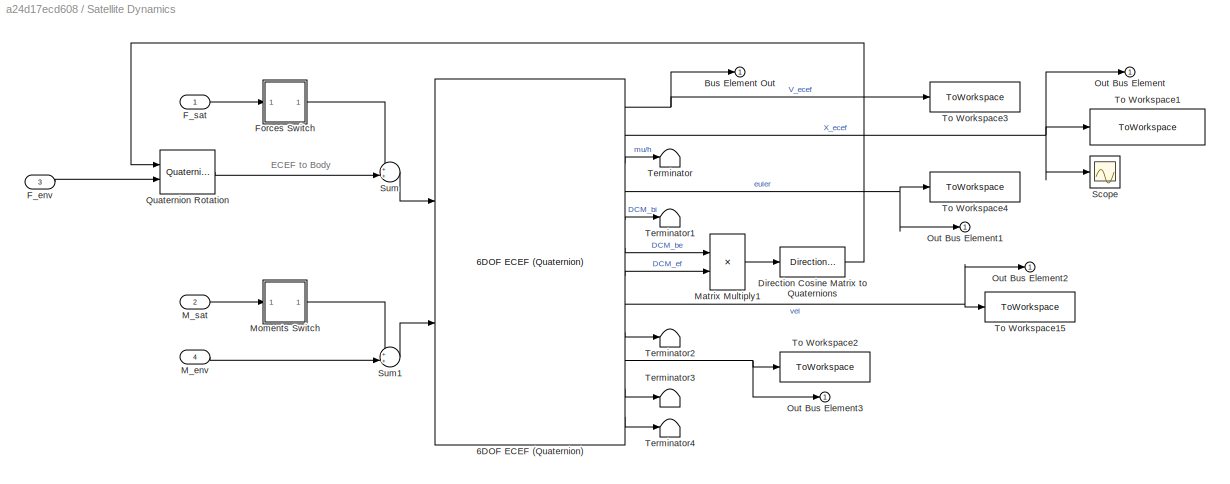
BLOCK [SubSystem] Satellite Dynamics
  Ports = [4, 1]
  RequestExecContextInheritance = off
BLOCK [Reference] Satellite Dynamics/6DOF ECEF (Quaternion)  REF=aerolib6dof2/6DOF ECEF (Quaternion)
  Ports = [2, 12]
  SourceBlock = aerolib6dof2/6DOF ECEF (Quaternion)
  SourceProductBaseCode = AE
  SourceProductName = Aerospace Blockset
  SourceType = 6DOF EoM (ECEF)
BLOCK [Outport] Satellite Dynamics/Bus Element Out
  IconDisplay = Port number
BLOCK [Reference] Satellite Dynamics/Direction Cosine Matrix to Quaternions  REF=sharedtransform/Direction Cosine Matrix 
to Quaternions
  Ports = [1, 1]
  SourceBlock = sharedtransform/Direction Cosine Matrix \nto Quaternions
  SourceProductBaseCode = AE
  SourceProductName = Aerospace Blockset
  SourceType = DCM2Quaternion
BLOCK [Inport] Satellite Dynamics/F_env
  IconDisplay = Port number
  Port = 3
BLOCK [Inport] Satellite Dynamics/F_sat
  IconDisplay = Port number
BLOCK [SubSystem] Satellite Dynamics/Forces Switch
  Ports = [1, 1]
  RequestExecContextInheritance = off
BLOCK [Constant] Satellite Dynamics/Forces Switch/Constant1
  Value = [0 0 0]
BLOCK [Constant] Satellite Dynamics/Forces Switch/Forces
  Value = 0
BLOCK [Inport] Satellite Dynamics/Forces Switch/In
  IconDisplay = Port number
BLOCK [Outport] Satellite Dynamics/Forces Switch/Out
  IconDisplay = Port number
BLOCK [Switch] Satellite Dynamics/Forces Switch/Switch
  Criteria = u2 > Threshold
  InputSameDT = off
  SaturateOnIntegerOverflow = off
BLOCK [Inport] Satellite Dynamics/M_env
  IconDisplay = Port number
  Port = 4
BLOCK [Inport] Satellite Dynamics/M_sat
  IconDisplay = Port number
  Port = 2
BLOCK [Product] Satellite Dynamics/Matrix Multiply1
  InputSameDT = off
  Multiplication = Matrix(*)
  OutDataTypeStr = Inherit: Inherit via internal rule
  Ports = [2, 1]
  RndMeth = Floor
  SaturateOnIntegerOverflow = off
BLOCK [SubSystem] Satellite Dynamics/Moments Switch
  Ports = [1, 1]
  RequestExecContextInheritance = off
BLOCK [Constant] Satellite Dynamics/Moments Switch/Constant1
  Value = [0 0 0]
BLOCK [Inport] Satellite Dynamics/Moments Switch/In
  IconDisplay = Port number
BLOCK [Constant] Satellite Dynamics/Moments Switch/Moments
BLOCK [Outport] Satellite Dynamics/Moments Switch/Out
  IconDisplay = Port number
BLOCK [Switch] Satellite Dynamics/Moments Switch/Switch
  Criteria = u2 > Threshold
  InputSameDT = off
  SaturateOnIntegerOverflow = off
BLOCK [Outport] Satellite Dynamics/Out Bus Element
  IconDisplay = Port number
BLOCK [Outport] Satellite Dynamics/Out Bus Element1
  IconDisplay = Port number
BLOCK [Outport] Satellite Dynamics/Out Bus Element2
  IconDisplay = Port number
BLOCK [Outport] Satellite Dynamics/Out Bus Element3
  IconDisplay = Port number
BLOCK [Reference] Satellite Dynamics/Quaternion Rotation  REF=aerolibutil/Quaternion
Rotation
  Ports = [2, 1]
  SourceBlock = aerolibutil/Quaternion\nRotation
  SourceProductBaseCode = AE
  SourceProductName = Aerospace Blockset
  SourceType = Quaternion Rotation
BLOCK [Scope] Satellite Dynamics/Scope
  Floating = off
  NumInputPorts = 1
  Ports = [1]
  ScopeSpecificationString = Simulink.scopes.TimeScopeBlockCfg('CurrentConfiguration', extmgr.ConfigurationSet(extmgr.Configuration('Core','General UI',true),extmgr.Configuration('Core','Source UI',true),extmgr.Configuration('Sources','WiredSimulink',true,'DataLoggingVariableName','ScopeData1'),extmgr.Configuration('Visuals','Time Domain',true,'SerializedDisplays',{struct('MinYLimReal','-6758550.37042','MaxYLimReal','746665.6...<+1433ch>
BLOCK [Sum] Satellite Dynamics/Sum
  IconShape = round
  InputSameDT = off
  Inputs = ++|
  OutDataTypeStr = Inherit: Inherit via internal rule
  Ports = [2, 1]
  SaturateOnIntegerOverflow = off
BLOCK [Sum] Satellite Dynamics/Sum1
  IconShape = round
  InputSameDT = off
  Inputs = ++|
  OutDataTypeStr = Inherit: Inherit via internal rule
  Ports = [2, 1]
  SaturateOnIntegerOverflow = off
BLOCK [Terminator] Satellite Dynamics/Terminator
BLOCK [Terminator] Satellite Dynamics/Terminator1
BLOCK [Terminator] Satellite Dynamics/Terminator2
BLOCK [Terminator] Satellite Dynamics/Terminator3
BLOCK [Terminator] Satellite Dynamics/Terminator4
BLOCK [ToWorkspace] Satellite Dynamics/To Workspace1
  FixptAsFi = on
  MaxDataPoints = inf
  Ports = [1]
  SampleTime = -1
  VariableName = r_ecef
BLOCK [ToWorkspace] Satellite Dynamics/To Workspace15
  FixptAsFi = on
  MaxDataPoints = inf
  Ports = [1]
  SampleTime = -1
  Save2DSignal = 2-D array (concatenate along first dimension)
  VariableName = v_b
BLOCK [ToWorkspace] Satellite Dynamics/To Workspace2
  FixptAsFi = on
  MaxDataPoints = inf
  Ports = [1]
  SampleTime = -1
  Save2DSignal = 2-D array (concatenate along first dimension)
  VariableName = omega_b
BLOCK [ToWorkspace] Satellite Dynamics/To Workspace3
  FixptAsFi = on
  MaxDataPoints = inf
  Ports = [1]
  SampleTime = -1
  Save2DSignal = 2-D array (concatenate along first dimension)
  VariableName = v_ecef
BLOCK [ToWorkspace] Satellite Dynamics/To Workspace4
  FixptAsFi = on
  MaxDataPoints = inf
  Ports = [1]
  SampleTime = -1
  Save2DSignal = 2-D array (concatenate along first dimension)
  VariableName = euler
BLOCK [Scope] Scope
  Floating = off
  IOType = viewer
  NumInputPorts = 1
  Ports = []
  ScopeSpecificationString = Simulink.scopes.TimeScopeBlockCfg('CurrentConfiguration', extmgr.ConfigurationSet(extmgr.Configuration('Core','General UI',true),extmgr.Configuration('Core','Source UI',true),extmgr.Configuration('Sources','WiredSimulink',true,'DataLoggingVariableName','ScopeData1'),extmgr.Configuration('Visuals','Time Domain',true,'SerializedDisplays',{struct('MinYLimReal','-10.00000','MaxYLimReal','10.00000','YL...<+1365ch>
BLOCK [Scope] Scope1
  Floating = off
  IOType = viewer
  NumInputPorts = 1
  Ports = []
  ScopeSpecificationString = Simulink.scopes.TimeScopeBlockCfg('CurrentConfiguration', extmgr.ConfigurationSet(extmgr.Configuration('Core','General UI',true),extmgr.Configuration('Core','Source UI',true),extmgr.Configuration('Sources','WiredSimulink',true,'DataLoggingVariableName','ScopeData2'),extmgr.Configuration('Visuals','Time Domain',true,'SerializedDisplays',{struct('MinYLimReal','-0.21592','MaxYLimReal','0.60577','YLab...<+2703ch>
BLOCK [Sum] Sum3
  IconShape = round
  InputSameDT = off
  Inputs = ++|
  OutDataTypeStr = Inherit: Inherit via internal rule
  Ports = [2, 1]
  SaturateOnIntegerOverflow = off
BLOCK [ToggleSwitchBlock] Toggle Switch
BLOCK [ToggleSwitchBlock] Toggle Switch1
BLOCK [Reference] Unit Pulse Product  REF=scars_library/Unit Pulse Product  (lib defined in slx_0992aaab4a30)
  Ports = [1, 1]
  SourceBlock = scars_library/Unit Pulse Product
ANNOTATION AOCS/Moments Actuators/Reaction Wheels/Reaction Wheel Pitch: Disturbances can be put here
ANNOTATION AOCS/Moments Actuators/Reaction Wheels/Reaction Wheel Pitch: input here
ANNOTATION AOCS/Moments Actuators/Reaction Wheels/Reaction Wheel Pitch: qw - anqular velocity of the wheel
ANNOTATION AOCS/Moments Actuators/Reaction Wheels/Reaction Wheel Roll: Disturbances can be put here
ANNOTATION AOCS/Moments Actuators/Reaction Wheels/Reaction Wheel Roll: input here
ANNOTATION AOCS/Moments Actuators/Reaction Wheels/Reaction Wheel Roll: qw - anqular velocity of the wheel
ANNOTATION AOCS/Moments Actuators/Reaction Wheels/Reaction Wheel Yaw: Disturbances can be put here
ANNOTATION AOCS/Moments Actuators/Reaction Wheels/Reaction Wheel Yaw: input here
ANNOTATION AOCS/Moments Actuators/Reaction Wheels/Reaction Wheel Yaw: qw - anqular velocity of the wheel
ANNOTATION AOCS/Moments Controller: for bang-bang:
ANNOTATION AOCS/Moments Controller: please check whether ref should be + or -
ANNOTATION Satellite Dynamics: ECEF to Body
LINE AOCS/Bus Selector1:1 -> AOCS/Scope1:1
LINE AOCS/Bus Selector:1 -> AOCS/Scope:1
NET AOCS/Constant1:1 -> AOCS/Moments Controller:1, AOCS/Scope1:2
NET AOCS/Constant4:1 -> AOCS/Forces Controller:1, AOCS/Scope:2
LINE AOCS/Force Actuators/Actuator Choice:1 -> AOCS/Force Actuators/Multiport Switch:1
NET AOCS/Force Actuators/ActuatorCmd:1 -> AOCS/Force Actuators/Directional Thrusters:1, AOCS/Force Actuators/Perfect Actuators:1
LINE AOCS/Force Actuators/Bus Element In:1 -> AOCS/Force Actuators/Terminator:1
LINE AOCS/Force Actuators/Constant1:1 -> AOCS/Force Actuators/Multiport Switch:4
LINE AOCS/Force Actuators/Constant:1 -> AOCS/Force Actuators/Multiport Switch:5
LINE AOCS/Force Actuators/Directional Thrusters:1 -> AOCS/Force Actuators/Multiport Switch:3
LINE AOCS/Force Actuators/Multiport Switch:1 -> AOCS/Force Actuators/ForceOut:1
LINE AOCS/Force Actuators/Perfect Actuators:1 -> AOCS/Force Actuators/Multiport Switch:2
NET AOCS/Force Actuators:1 -> AOCS/Forces:1, AOCS/Scope2:1
NET AOCS/Forces Controller/Bus Element In:1 -> AOCS/Forces Controller/Scope:2, AOCS/Forces Controller/Sum2:1
LINE AOCS/Forces Controller/Clock:1 -> AOCS/Forces Controller/Switch:2
LINE AOCS/Forces Controller/Constant:1 -> AOCS/Forces Controller/Switch:1
LINE AOCS/Forces Controller/PID Controller:1 -> AOCS/Forces Controller/Subsystem2:1
NET AOCS/Forces Controller/Saturation:1 -> AOCS/Forces Controller/Scope:4, AOCS/Forces Controller/Switch:3
LINE AOCS/Forces Controller/Subsystem2/Constant5:1 -> AOCS/Forces Controller/Subsystem2/Mux:1
LINE AOCS/Forces Controller/Subsystem2/Constant6:1 -> AOCS/Forces Controller/Subsystem2/Mux:3
LINE AOCS/Forces Controller/Subsystem2/Demux:1 -> AOCS/Forces Controller/Subsystem2/Terminator:1
LINE AOCS/Forces Controller/Subsystem2/Demux:2 -> AOCS/Forces Controller/Subsystem2/Mux:2
LINE AOCS/Forces Controller/Subsystem2/Demux:3 -> AOCS/Forces Controller/Subsystem2/Terminator1:1
LINE AOCS/Forces Controller/Subsystem2/Mux:1 -> AOCS/Forces Controller/Subsystem2/Out1:1
LINE AOCS/Forces Controller/Subsystem2/pid:1 -> AOCS/Forces Controller/Subsystem2/Demux:1
LINE AOCS/Forces Controller/Subsystem2:1 -> AOCS/Forces Controller/Saturation:1
NET AOCS/Forces Controller/Sum2:1 -> AOCS/Forces Controller/PID Controller:1, AOCS/Forces Controller/Scope:3
NET AOCS/Forces Controller/Switch:1 -> AOCS/Forces Controller/Force:1, AOCS/Forces Controller/Scope1:1
NET AOCS/Forces Controller/ref:1 -> AOCS/Forces Controller/Scope:1, AOCS/Forces Controller/Sum2:2
LINE AOCS/Forces Controller:1 -> AOCS/Force Actuators:1
LINE AOCS/Moments Actuators/Actuator Choice:1 -> AOCS/Moments Actuators/Multiport Switch:1
NET AOCS/Moments Actuators/ActuatorCmd:1 -> AOCS/Moments Actuators/Bang-Bang Thrusters:1, AOCS/Moments Actuators/Perfect Actuators:1, AOCS/Moments Actuators/Reaction Wheels:2
LINE AOCS/Moments Actuators/Bang-Bang Thrusters/Demux:1 -> AOCS/Moments Actuators/Bang-Bang Thrusters/Thruster Roll:1
LINE AOCS/Moments Actuators/Bang-Bang Thrusters/Demux:2 -> AOCS/Moments Actuators/Bang-Bang Thrusters/Thruster Pitch:1
LINE AOCS/Moments Actuators/Bang-Bang Thrusters/Demux:3 -> AOCS/Moments Actuators/Bang-Bang Thrusters/Thruster Yaw:1
LINE AOCS/Moments Actuators/Bang-Bang Thrusters/Gain:1 -> AOCS/Moments Actuators/Bang-Bang Thrusters/Torque:1
LINE AOCS/Moments Actuators/Bang-Bang Thrusters/Mux:1 -> AOCS/Moments Actuators/Bang-Bang Thrusters/Gain:1
NET AOCS/Moments Actuators/Bang-Bang Thrusters/Thruster Pitch/Gain2:1 -> AOCS/Moments Actuators/Bang-Bang Thrusters/Thruster Pitch/Relay2:1, AOCS/Moments Actuators/Bang-Bang Thrusters/Thruster Pitch/Scope1:2
NET AOCS/Moments Actuators/Bang-Bang Thrusters/Thruster Pitch/Relay1:1 -> AOCS/Moments Actuators/Bang-Bang Thrusters/Thruster Pitch/Scope1:4, AOCS/Moments Actuators/Bang-Bang Thrusters/Thruster Pitch/Sum2:1
NET AOCS/Moments Actuators/Bang-Bang Thrusters/Thruster Pitch/Relay2:1 -> AOCS/Moments Actuators/Bang-Bang Thrusters/Thruster Pitch/Scope1:3, AOCS/Moments Actuators/Bang-Bang Thrusters/Thruster Pitch/Sum2:2
LINE AOCS/Moments Actuators/Bang-Bang Thrusters/Thruster Pitch/Sum1:1 -> AOCS/Moments Actuators/Bang-Bang Thrusters/Thruster Pitch/Torque Out:1
NET AOCS/Moments Actuators/Bang-Bang Thrusters/Thruster Pitch/Sum2:1 -> AOCS/Moments Actuators/Bang-Bang Thrusters/Thruster Pitch/Scope1:5, AOCS/Moments Actuators/Bang-Bang Thrusters/Thruster Pitch/Sum1:1
NET AOCS/Moments Actuators/Bang-Bang Thrusters/Thruster Pitch/Torque:1 -> AOCS/Moments Actuators/Bang-Bang Thrusters/Thruster Pitch/Gain2:1, AOCS/Moments Actuators/Bang-Bang Thrusters/Thruster Pitch/Relay1:1, AOCS/Moments Actuators/Bang-Bang Thrusters/Thruster Pitch/Scope1:1
LINE AOCS/Moments Actuators/Bang-Bang Thrusters/Thruster Pitch:1 -> AOCS/Moments Actuators/Bang-Bang Thrusters/Mux:2
NET AOCS/Moments Actuators/Bang-Bang Thrusters/Thruster Roll/Gain2:1 -> AOCS/Moments Actuators/Bang-Bang Thrusters/Thruster Roll/Relay2:1, AOCS/Moments Actuators/Bang-Bang Thrusters/Thruster Roll/Scope1:2
NET AOCS/Moments Actuators/Bang-Bang Thrusters/Thruster Roll/Relay1:1 -> AOCS/Moments Actuators/Bang-Bang Thrusters/Thruster Roll/Scope1:4, AOCS/Moments Actuators/Bang-Bang Thrusters/Thruster Roll/Sum2:1
NET AOCS/Moments Actuators/Bang-Bang Thrusters/Thruster Roll/Relay2:1 -> AOCS/Moments Actuators/Bang-Bang Thrusters/Thruster Roll/Scope1:3, AOCS/Moments Actuators/Bang-Bang Thrusters/Thruster Roll/Sum2:2
LINE AOCS/Moments Actuators/Bang-Bang Thrusters/Thruster Roll/Sum1:1 -> AOCS/Moments Actuators/Bang-Bang Thrusters/Thruster Roll/Torque Out:1
NET AOCS/Moments Actuators/Bang-Bang Thrusters/Thruster Roll/Sum2:1 -> AOCS/Moments Actuators/Bang-Bang Thrusters/Thruster Roll/Scope1:5, AOCS/Moments Actuators/Bang-Bang Thrusters/Thruster Roll/Sum1:1
NET AOCS/Moments Actuators/Bang-Bang Thrusters/Thruster Roll/Torque:1 -> AOCS/Moments Actuators/Bang-Bang Thrusters/Thruster Roll/Gain2:1, AOCS/Moments Actuators/Bang-Bang Thrusters/Thruster Roll/Relay1:1, AOCS/Moments Actuators/Bang-Bang Thrusters/Thruster Roll/Scope1:1
LINE AOCS/Moments Actuators/Bang-Bang Thrusters/Thruster Roll:1 -> AOCS/Moments Actuators/Bang-Bang Thrusters/Mux:1
LINE AOCS/Moments Actuators/Bang-Bang Thrusters/Thruster Yaw/Constant1:1 -> AOCS/Moments Actuators/Bang-Bang Thrusters/Thruster Yaw/Mux1:4
LINE AOCS/Moments Actuators/Bang-Bang Thrusters/Thruster Yaw/Constant:1 -> AOCS/Moments Actuators/Bang-Bang Thrusters/Thruster Yaw/Mux1:3
NET AOCS/Moments Actuators/Bang-Bang Thrusters/Thruster Yaw/Gain2:1 -> AOCS/Moments Actuators/Bang-Bang Thrusters/Thruster Yaw/Mux1:2, AOCS/Moments Actuators/Bang-Bang Thrusters/Thruster Yaw/Relay2:1
LINE AOCS/Moments Actuators/Bang-Bang Thrusters/Thruster Yaw/Mux1:1 -> AOCS/Moments Actuators/Bang-Bang Thrusters/Thruster Yaw/Scope1:1
LINE AOCS/Moments Actuators/Bang-Bang Thrusters/Thruster Yaw/Mux:1 -> AOCS/Moments Actuators/Bang-Bang Thrusters/Thruster Yaw/Scope1:2
NET AOCS/Moments Actuators/Bang-Bang Thrusters/Thruster Yaw/Relay1:1 -> AOCS/Moments Actuators/Bang-Bang Thrusters/Thruster Yaw/Mux:2, AOCS/Moments Actuators/Bang-Bang Thrusters/Thruster Yaw/Sum2:1
NET AOCS/Moments Actuators/Bang-Bang Thrusters/Thruster Yaw/Relay2:1 -> AOCS/Moments Actuators/Bang-Bang Thrusters/Thruster Yaw/Mux:1, AOCS/Moments Actuators/Bang-Bang Thrusters/Thruster Yaw/Sum2:2
LINE AOCS/Moments Actuators/Bang-Bang Thrusters/Thruster Yaw/Sum1:1 -> AOCS/Moments Actuators/Bang-Bang Thrusters/Thruster Yaw/Torque Out:1
NET AOCS/Moments Actuators/Bang-Bang Thrusters/Thruster Yaw/Sum2:1 -> AOCS/Moments Actuators/Bang-Bang Thrusters/Thruster Yaw/Mux:3, AOCS/Moments Actuators/Bang-Bang Thrusters/Thruster Yaw/Sum1:1
NET AOCS/Moments Actuators/Bang-Bang Thrusters/Thruster Yaw/Torque:1 -> AOCS/Moments Actuators/Bang-Bang Thrusters/Thruster Yaw/Gain2:1, AOCS/Moments Actuators/Bang-Bang Thrusters/Thruster Yaw/Mux1:1, AOCS/Moments Actuators/Bang-Bang Thrusters/Thruster Yaw/Relay1:1
LINE AOCS/Moments Actuators/Bang-Bang Thrusters/Thruster Yaw:1 -> AOCS/Moments Actuators/Bang-Bang Thrusters/Mux:3
LINE AOCS/Moments Actuators/Bang-Bang Thrusters/TorqueCmd:1 -> AOCS/Moments Actuators/Bang-Bang Thrusters/Demux:1
LINE AOCS/Moments Actuators/Bang-Bang Thrusters:1 -> AOCS/Moments Actuators/Multiport Switch:3
LINE AOCS/Moments Actuators/Bus Element In:1 -> AOCS/Moments Actuators/Reaction Wheels:1
LINE AOCS/Moments Actuators/Constant:1 -> AOCS/Moments Actuators/Multiport Switch:5
LINE AOCS/Moments Actuators/Multiport Switch:1 -> AOCS/Moments Actuators/ForceOut:1
LINE AOCS/Moments Actuators/Perfect Actuators:1 -> AOCS/Moments Actuators/Multiport Switch:2
LINE AOCS/Moments Actuators/Reaction Wheels/Demux2:1 -> AOCS/Moments Actuators/Reaction Wheels/Reaction Wheel Roll:1
LINE AOCS/Moments Actuators/Reaction Wheels/Demux2:2 -> AOCS/Moments Actuators/Reaction Wheels/Reaction Wheel Pitch:1
LINE AOCS/Moments Actuators/Reaction Wheels/Demux2:3 -> AOCS/Moments Actuators/Reaction Wheels/Reaction Wheel Yaw:1
LINE AOCS/Moments Actuators/Reaction Wheels/Demux:1 -> AOCS/Moments Actuators/Reaction Wheels/Reaction Wheel Roll:2
LINE AOCS/Moments Actuators/Reaction Wheels/Demux:2 -> AOCS/Moments Actuators/Reaction Wheels/Reaction Wheel Pitch:2
LINE AOCS/Moments Actuators/Reaction Wheels/Demux:3 -> AOCS/Moments Actuators/Reaction Wheels/Reaction Wheel Yaw:2
LINE AOCS/Moments Actuators/Reaction Wheels/Mux:1 -> AOCS/Moments Actuators/Reaction Wheels/Torque:1
LINE AOCS/Moments Actuators/Reaction Wheels/Omega:1 -> AOCS/Moments Actuators/Reaction Wheels/Demux2:1
NET AOCS/Moments Actuators/Reaction Wheels/Reaction Wheel Pitch/Gain1:1 -> AOCS/Moments Actuators/Reaction Wheels/Reaction Wheel Pitch/Sum1:1, AOCS/Moments Actuators/Reaction Wheels/Reaction Wheel Pitch/Sum3:1
NET AOCS/Moments Actuators/Reaction Wheels/Reaction Wheel Pitch/Gain2:1 -> AOCS/Moments Actuators/Reaction Wheels/Reaction Wheel Pitch/Sum1:2, AOCS/Moments Actuators/Reaction Wheels/Reaction Wheel Pitch/Sum3:2
LINE AOCS/Moments Actuators/Reaction Wheels/Reaction Wheel Pitch/Gain:1 -> AOCS/Moments Actuators/Reaction Wheels/Reaction Wheel Pitch/Sum:2
LINE AOCS/Moments Actuators/Reaction Wheels/Reaction Wheel Pitch/Integrator:1 -> AOCS/Moments Actuators/Reaction Wheels/Reaction Wheel Pitch/Scope:2
NET AOCS/Moments Actuators/Reaction Wheels/Reaction Wheel Pitch/Rate:1 -> AOCS/Moments Actuators/Reaction Wheels/Reaction Wheel Pitch/Integrator:1, AOCS/Moments Actuators/Reaction Wheels/Reaction Wheel Pitch/Scope:1, AOCS/Moments Actuators/Reaction Wheels/Reaction Wheel Pitch/Sum2:1
LINE AOCS/Moments Actuators/Reaction Wheels/Reaction Wheel Pitch/Sum1:1 -> AOCS/Moments Actuators/Reaction Wheels/Reaction Wheel Pitch/Torque Out:1
NET AOCS/Moments Actuators/Reaction Wheels/Reaction Wheel Pitch/Sum2:1 -> AOCS/Moments Actuators/Reaction Wheels/Reaction Wheel Pitch/Gain2:1, AOCS/Moments Actuators/Reaction Wheels/Reaction Wheel Pitch/Gain:1
LINE AOCS/Moments Actuators/Reaction Wheels/Reaction Wheel Pitch/Sum3:1 -> AOCS/Moments Actuators/Reaction Wheels/Reaction Wheel Pitch/Transfer Fcn:1
LINE AOCS/Moments Actuators/Reaction Wheels/Reaction Wheel Pitch/Sum:1 -> AOCS/Moments Actuators/Reaction Wheels/Reaction Wheel Pitch/Gain1:1
LINE AOCS/Moments Actuators/Reaction Wheels/Reaction Wheel Pitch/Torque:1 -> AOCS/Moments Actuators/Reaction Wheels/Reaction Wheel Pitch/Sum:1
LINE AOCS/Moments Actuators/Reaction Wheels/Reaction Wheel Pitch/Transfer Fcn:1 -> AOCS/Moments Actuators/Reaction Wheels/Reaction Wheel Pitch/Sum2:2
LINE AOCS/Moments Actuators/Reaction Wheels/Reaction Wheel Pitch:1 -> AOCS/Moments Actuators/Reaction Wheels/Mux:2
NET AOCS/Moments Actuators/Reaction Wheels/Reaction Wheel Roll/Gain1:1 -> AOCS/Moments Actuators/Reaction Wheels/Reaction Wheel Roll/Sum1:1, AOCS/Moments Actuators/Reaction Wheels/Reaction Wheel Roll/Sum3:1
NET AOCS/Moments Actuators/Reaction Wheels/Reaction Wheel Roll/Gain2:1 -> AOCS/Moments Actuators/Reaction Wheels/Reaction Wheel Roll/Sum1:2, AOCS/Moments Actuators/Reaction Wheels/Reaction Wheel Roll/Sum3:2
LINE AOCS/Moments Actuators/Reaction Wheels/Reaction Wheel Roll/Gain:1 -> AOCS/Moments Actuators/Reaction Wheels/Reaction Wheel Roll/Sum:2
LINE AOCS/Moments Actuators/Reaction Wheels/Reaction Wheel Roll/Integrator:1 -> AOCS/Moments Actuators/Reaction Wheels/Reaction Wheel Roll/Scope:2
NET AOCS/Moments Actuators/Reaction Wheels/Reaction Wheel Roll/Rate:1 -> AOCS/Moments Actuators/Reaction Wheels/Reaction Wheel Roll/Integrator:1, AOCS/Moments Actuators/Reaction Wheels/Reaction Wheel Roll/Scope:1, AOCS/Moments Actuators/Reaction Wheels/Reaction Wheel Roll/Sum2:1
LINE AOCS/Moments Actuators/Reaction Wheels/Reaction Wheel Roll/Sum1:1 -> AOCS/Moments Actuators/Reaction Wheels/Reaction Wheel Roll/Torque Out:1
NET AOCS/Moments Actuators/Reaction Wheels/Reaction Wheel Roll/Sum2:1 -> AOCS/Moments Actuators/Reaction Wheels/Reaction Wheel Roll/Gain2:1, AOCS/Moments Actuators/Reaction Wheels/Reaction Wheel Roll/Gain:1
LINE AOCS/Moments Actuators/Reaction Wheels/Reaction Wheel Roll/Sum3:1 -> AOCS/Moments Actuators/Reaction Wheels/Reaction Wheel Roll/Transfer Fcn:1
LINE AOCS/Moments Actuators/Reaction Wheels/Reaction Wheel Roll/Sum:1 -> AOCS/Moments Actuators/Reaction Wheels/Reaction Wheel Roll/Gain1:1
LINE AOCS/Moments Actuators/Reaction Wheels/Reaction Wheel Roll/Torque:1 -> AOCS/Moments Actuators/Reaction Wheels/Reaction Wheel Roll/Sum:1
LINE AOCS/Moments Actuators/Reaction Wheels/Reaction Wheel Roll/Transfer Fcn:1 -> AOCS/Moments Actuators/Reaction Wheels/Reaction Wheel Roll/Sum2:2
LINE AOCS/Moments Actuators/Reaction Wheels/Reaction Wheel Roll:1 -> AOCS/Moments Actuators/Reaction Wheels/Mux:1
NET AOCS/Moments Actuators/Reaction Wheels/Reaction Wheel Yaw/Gain1:1 -> AOCS/Moments Actuators/Reaction Wheels/Reaction Wheel Yaw/Sum1:1, AOCS/Moments Actuators/Reaction Wheels/Reaction Wheel Yaw/Sum3:1
NET AOCS/Moments Actuators/Reaction Wheels/Reaction Wheel Yaw/Gain2:1 -> AOCS/Moments Actuators/Reaction Wheels/Reaction Wheel Yaw/Sum1:2, AOCS/Moments Actuators/Reaction Wheels/Reaction Wheel Yaw/Sum3:2
LINE AOCS/Moments Actuators/Reaction Wheels/Reaction Wheel Yaw/Gain:1 -> AOCS/Moments Actuators/Reaction Wheels/Reaction Wheel Yaw/Sum:2
LINE AOCS/Moments Actuators/Reaction Wheels/Reaction Wheel Yaw/Integrator:1 -> AOCS/Moments Actuators/Reaction Wheels/Reaction Wheel Yaw/Scope:2
NET AOCS/Moments Actuators/Reaction Wheels/Reaction Wheel Yaw/Rate:1 -> AOCS/Moments Actuators/Reaction Wheels/Reaction Wheel Yaw/Integrator:1, AOCS/Moments Actuators/Reaction Wheels/Reaction Wheel Yaw/Scope:1, AOCS/Moments Actuators/Reaction Wheels/Reaction Wheel Yaw/Sum2:1
LINE AOCS/Moments Actuators/Reaction Wheels/Reaction Wheel Yaw/Sum1:1 -> AOCS/Moments Actuators/Reaction Wheels/Reaction Wheel Yaw/Torque Out:1
NET AOCS/Moments Actuators/Reaction Wheels/Reaction Wheel Yaw/Sum2:1 -> AOCS/Moments Actuators/Reaction Wheels/Reaction Wheel Yaw/Gain2:1, AOCS/Moments Actuators/Reaction Wheels/Reaction Wheel Yaw/Gain:1
LINE AOCS/Moments Actuators/Reaction Wheels/Reaction Wheel Yaw/Sum3:1 -> AOCS/Moments Actuators/Reaction Wheels/Reaction Wheel Yaw/Transfer Fcn:1
LINE AOCS/Moments Actuators/Reaction Wheels/Reaction Wheel Yaw/Sum:1 -> AOCS/Moments Actuators/Reaction Wheels/Reaction Wheel Yaw/Gain1:1
LINE AOCS/Moments Actuators/Reaction Wheels/Reaction Wheel Yaw/Torque:1 -> AOCS/Moments Actuators/Reaction Wheels/Reaction Wheel Yaw/Sum:1
LINE AOCS/Moments Actuators/Reaction Wheels/Reaction Wheel Yaw/Transfer Fcn:1 -> AOCS/Moments Actuators/Reaction Wheels/Reaction Wheel Yaw/Sum2:2
LINE AOCS/Moments Actuators/Reaction Wheels/Reaction Wheel Yaw:1 -> AOCS/Moments Actuators/Reaction Wheels/Mux:3
LINE AOCS/Moments Actuators/Reaction Wheels/TorqueCmd:1 -> AOCS/Moments Actuators/Reaction Wheels/Demux:1
LINE AOCS/Moments Actuators/Reaction Wheels:1 -> AOCS/Moments Actuators/Multiport Switch:4
NET AOCS/Moments Actuators:1 -> AOCS/Moments:1, AOCS/Scope3:1
NET AOCS/Moments Controller/Bus Element In:1 -> AOCS/Moments Controller/Scope:2, AOCS/Moments Controller/Sum2:1
LINE AOCS/Moments Controller/Clock:1 -> AOCS/Moments Controller/Switch:2
LINE AOCS/Moments Controller/Constant:1 -> AOCS/Moments Controller/Switch:1
LINE AOCS/Moments Controller/Derivative:1 -> AOCS/Moments Controller/Kd:1
LINE AOCS/Moments Controller/Integrator2:1 -> AOCS/Moments Controller/Ki:1
LINE AOCS/Moments Controller/Kd:1 -> AOCS/Moments Controller/Sum4:3
LINE AOCS/Moments Controller/Ki:1 -> AOCS/Moments Controller/Sum4:2
LINE AOCS/Moments Controller/Kp:1 -> AOCS/Moments Controller/Sum4:1
NET AOCS/Moments Controller/Saturation:1 -> AOCS/Moments Controller/Scope:4, AOCS/Moments Controller/Switch:3
NET AOCS/Moments Controller/Sum2:1 -> AOCS/Moments Controller/Derivative:1, AOCS/Moments Controller/Integrator2:1, AOCS/Moments Controller/Kp:1, AOCS/Moments Controller/Scope:3
LINE AOCS/Moments Controller/Sum4:1 -> AOCS/Moments Controller/Saturation:1
NET AOCS/Moments Controller/Switch:1 -> AOCS/Moments Controller/Scope1:1, AOCS/Moments Controller/Torque:1
NET AOCS/Moments Controller/ref:1 -> AOCS/Moments Controller/Scope:1, AOCS/Moments Controller/Sum2:2
LINE AOCS/Moments Controller:1 -> AOCS/Moments Actuators:1
NET AOCS/SatStates:1 -> AOCS/Bus Selector1:1, AOCS/Bus Selector:1, AOCS/Force Actuators:2, AOCS/Forces Controller:2, AOCS/Moments Actuators:2, AOCS/Moments Controller:2
LINE AOCS:1 -> Sum3:1
LINE AOCS:2 -> Satellite Dynamics:2
LINE Constant2:1 -> Unit Pulse Product:1
LINE Environment/Forces Environment/Bus Element In:1 -> Environment/Forces Environment/Spherical Harmonic Gravity Model1:1
NET Environment/Forces Environment/Spherical Harmonic Gravity Model1:1 -> Environment/Forces Environment/To Workspace13:1, Environment/Forces Environment/force:1
LINE Environment/Forces Environment:1 -> Environment/Forces:1
LINE Environment/Moments Environment/Constant:1 -> Environment/Moments Environment/Out1:1
LINE Environment/Moments Environment:1 -> Environment/Unit Pulse Product1:1
LINE Environment/SatStates:1 -> Environment/Forces Environment:1
LINE Environment/Unit Pulse Product1:1 -> Environment/Moments:1
LINE Environment:1 -> Satellite Dynamics:3
LINE Environment:2 -> Satellite Dynamics:4
NET From:1 -> AOCS:1, Environment:1
NET Satellite Dynamics/6DOF ECEF (Quaternion):1 -> Satellite Dynamics/Bus Element Out:1, Satellite Dynamics/To Workspace3:1
NET Satellite Dynamics/6DOF ECEF (Quaternion):10 -> Satellite Dynamics/Out Bus Element3:1, Satellite Dynamics/To Workspace2:1
LINE Satellite Dynamics/6DOF ECEF (Quaternion):11 -> Satellite Dynamics/Terminator3:1
LINE Satellite Dynamics/6DOF ECEF (Quaternion):12 -> Satellite Dynamics/Terminator4:1
NET Satellite Dynamics/6DOF ECEF (Quaternion):2 -> Satellite Dynamics/Out Bus Element:1, Satellite Dynamics/Scope:1, Satellite Dynamics/To Workspace1:1
LINE Satellite Dynamics/6DOF ECEF (Quaternion):3 -> Satellite Dynamics/Terminator:1
NET Satellite Dynamics/6DOF ECEF (Quaternion):4 -> Satellite Dynamics/Out Bus Element1:1, Satellite Dynamics/To Workspace4:1
LINE Satellite Dynamics/6DOF ECEF (Quaternion):5 -> Satellite Dynamics/Terminator1:1
LINE Satellite Dynamics/6DOF ECEF (Quaternion):6 -> Satellite Dynamics/Matrix Multiply1:1
LINE Satellite Dynamics/6DOF ECEF (Quaternion):7 -> Satellite Dynamics/Matrix Multiply1:2
NET Satellite Dynamics/6DOF ECEF (Quaternion):8 -> Satellite Dynamics/Out Bus Element2:1, Satellite Dynamics/To Workspace15:1
LINE Satellite Dynamics/6DOF ECEF (Quaternion):9 -> Satellite Dynamics/Terminator2:1
LINE Satellite Dynamics/Direction Cosine Matrix to Quaternions:1 -> Satellite Dynamics/Quaternion Rotation:1
LINE Satellite Dynamics/F_env:1 -> Satellite Dynamics/Quaternion Rotation:2
LINE Satellite Dynamics/F_sat:1 -> Satellite Dynamics/Forces Switch:1
LINE Satellite Dynamics/Forces Switch/Constant1:1 -> Satellite Dynamics/Forces Switch/Switch:3
LINE Satellite Dynamics/Forces Switch/Forces:1 -> Satellite Dynamics/Forces Switch/Switch:2
LINE Satellite Dynamics/Forces Switch/In:1 -> Satellite Dynamics/Forces Switch/Switch:1
LINE Satellite Dynamics/Forces Switch/Switch:1 -> Satellite Dynamics/Forces Switch/Out:1
LINE Satellite Dynamics/Forces Switch:1 -> Satellite Dynamics/Sum:1
LINE Satellite Dynamics/M_env:1 -> Satellite Dynamics/Sum1:2
LINE Satellite Dynamics/M_sat:1 -> Satellite Dynamics/Moments Switch:1
LINE Satellite Dynamics/Matrix Multiply1:1 -> Satellite Dynamics/Direction Cosine Matrix to Quaternions:1
LINE Satellite Dynamics/Moments Switch/Constant1:1 -> Satellite Dynamics/Moments Switch/Switch:3
LINE Satellite Dynamics/Moments Switch/In:1 -> Satellite Dynamics/Moments Switch/Switch:1
LINE Satellite Dynamics/Moments Switch/Moments:1 -> Satellite Dynamics/Moments Switch/Switch:2
LINE Satellite Dynamics/Moments Switch/Switch:1 -> Satellite Dynamics/Moments Switch/Out:1
LINE Satellite Dynamics/Moments Switch:1 -> Satellite Dynamics/Sum1:1
LINE Satellite Dynamics/Quaternion Rotation:1 -> Satellite Dynamics/Sum:2
LINE Satellite Dynamics/Sum1:1 -> Satellite Dynamics/6DOF ECEF (Quaternion):2
LINE Satellite Dynamics/Sum:1 -> Satellite Dynamics/6DOF ECEF (Quaternion):1
LINE Satellite Dynamics:1 -> Goto:1
LINE Sum3:1 -> Satellite Dynamics:1
LINE Unit Pulse Product:1 -> Sum3:2
note: NET lines group one-source signal fan-out (src -> all destinations, sorted); 1:1 wires keep LINE
